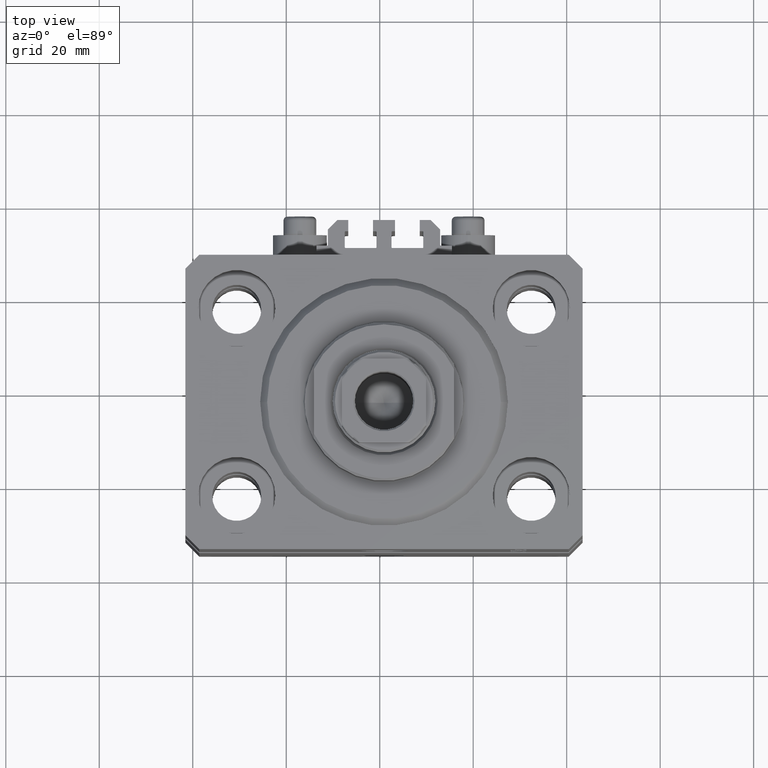
[diagram: clean part render]
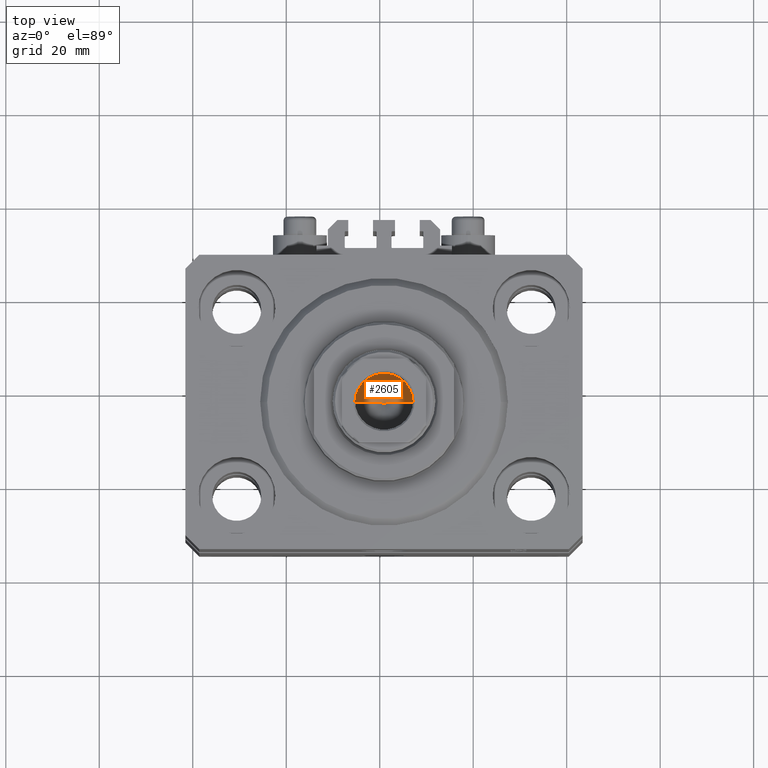
[diagram: same view with one face highlighted and labeled with its STEP entity id]
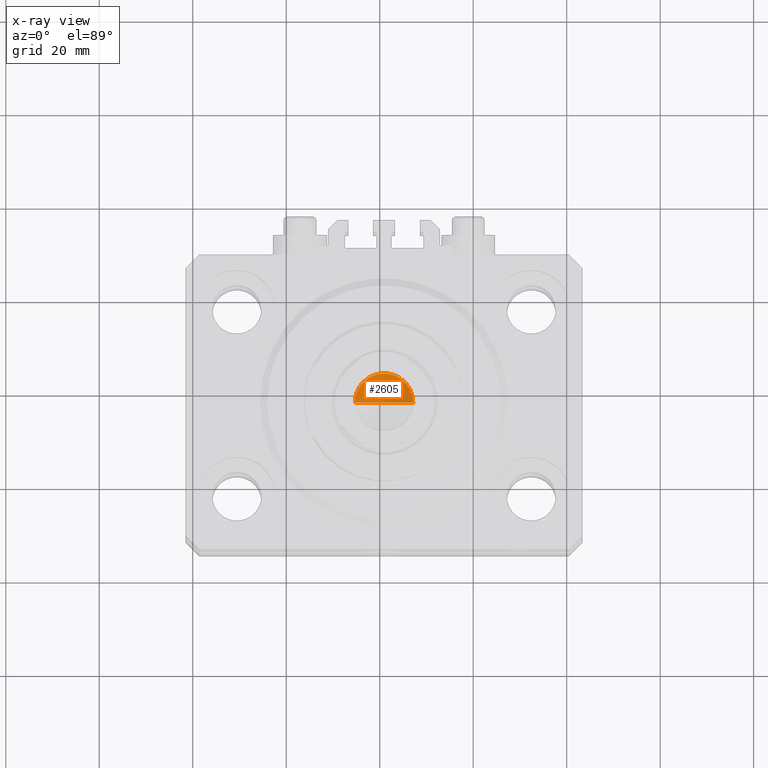
[diagram: x-ray of the same camera — body ghosted, the highlighted face saturated]
A machine part, top view. The second image highlights one B-rep face of the part: STEP entity #2605.
The next image is the same camera in x-ray: the body ghosted, the highlighted face saturated — about 0% of this face is hidden behind the body in this view.
In plain terms, the highlighted conical surface has half-angle 59 deg.
Its self-contained STEP definition (entity closure, byte-faithful):
#1445 = CARTESIAN_POINT ( 'NONE',  ( 0.000000000000000000, 0.000000000000000000, 73.50000000000001421 ) ) ;
#2605 = ADVANCED_FACE ( 'NONE', ( #42117 ), #8276, .F. ) ;
#3320 = ORIENTED_EDGE ( 'NONE', *, *, #38402, .T. ) ;
#4419 = AXIS2_PLACEMENT_3D ( 'NONE', #1445, #19967, #9155 ) ;
#5068 = LINE ( 'NONE', #41178, #30465 ) ;
#7301 = VERTEX_POINT ( 'NONE', #9963 ) ;
#8276 = CONICAL_SURFACE ( 'NONE', #4419, 6.249999999999993783, 1.029744258676652979 ) ;
#9155 = DIRECTION ( 'NONE',  ( 1.000000000000000000, 0.000000000000000000, 0.000000000000000000 ) ) ;
#9963 = CARTESIAN_POINT ( 'NONE',  ( -6.249999999999993783, 7.654042494670949718E-16, 73.50000000000001421 ) ) ;
#10078 = EDGE_LOOP ( 'NONE', ( #12568, #3320, #13288 ) ) ;
#12568 = ORIENTED_EDGE ( 'NONE', *, *, #27044, .F. ) ;
#13288 = ORIENTED_EDGE ( 'NONE', *, *, #18375, .T. ) ;
#13788 = CARTESIAN_POINT ( 'NONE',  ( -7.434177670704979810E-15, 0.000000000000000000, 69.74462113107774996 ) ) ;
#17720 = VERTEX_POINT ( 'NONE', #34299 ) ;
#18375 = EDGE_CURVE ( 'NONE', #17720, #7301, #25572, .T. ) ;
#19967 = DIRECTION ( 'NONE',  ( -0.000000000000000000, -0.000000000000000000, 1.000000000000000000 ) ) ;
#25013 = DIRECTION ( 'NONE',  ( 1.000000000000000000, 0.000000000000000000, 0.000000000000000000 ) ) ;
#25572 = CIRCLE ( 'NONE', #37860, 6.249999999999993783 ) ;
#25734 = VECTOR ( 'NONE', #38484, 1000.000000000000000 ) ;
#27044 = EDGE_CURVE ( 'NONE', #39204, #7301, #42573, .T. ) ;
#30465 = VECTOR ( 'NONE', #37558, 1000.000000000000000 ) ;
#34299 = CARTESIAN_POINT ( 'NONE',  ( 6.249999999999993783, 0.000000000000000000, 73.50000000000001421 ) ) ;
#35341 = CARTESIAN_POINT ( 'NONE',  ( -6.249999999999993783, 7.654042494670949718E-16, 73.50000000000001421 ) ) ;
#35842 = CARTESIAN_POINT ( 'NONE',  ( 0.000000000000000000, 0.000000000000000000, 73.50000000000001421 ) ) ;
#37558 = DIRECTION ( 'NONE',  ( 0.8571673007021115565, 0.000000000000000000, 0.5150380749100554878 ) ) ;
#37860 = AXIS2_PLACEMENT_3D ( 'NONE', #35842, #43078, #25013 ) ;
#38402 = EDGE_CURVE ( 'NONE', #39204, #17720, #5068, .T. ) ;
#38484 = DIRECTION ( 'NONE',  ( -0.8571673007021115565, 1.049727191138617710E-16, 0.5150380749100554878 ) ) ;
#39204 = VERTEX_POINT ( 'NONE', #13788 ) ;
#41178 = CARTESIAN_POINT ( 'NONE',  ( 6.249999999999993783, 0.000000000000000000, 73.50000000000001421 ) ) ;
#42117 = FACE_OUTER_BOUND ( 'NONE', #10078, .T. ) ;
#42573 = LINE ( 'NONE', #35341, #25734 ) ;
#43078 = DIRECTION ( 'NONE',  ( -0.000000000000000000, -0.000000000000000000, 1.000000000000000000 ) ) ;